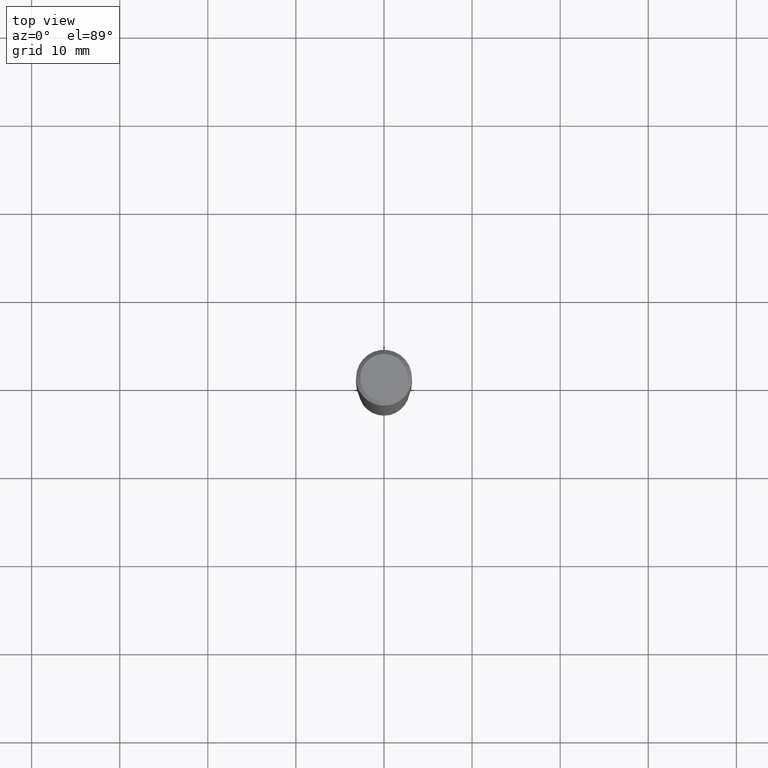
[diagram: clean part render]
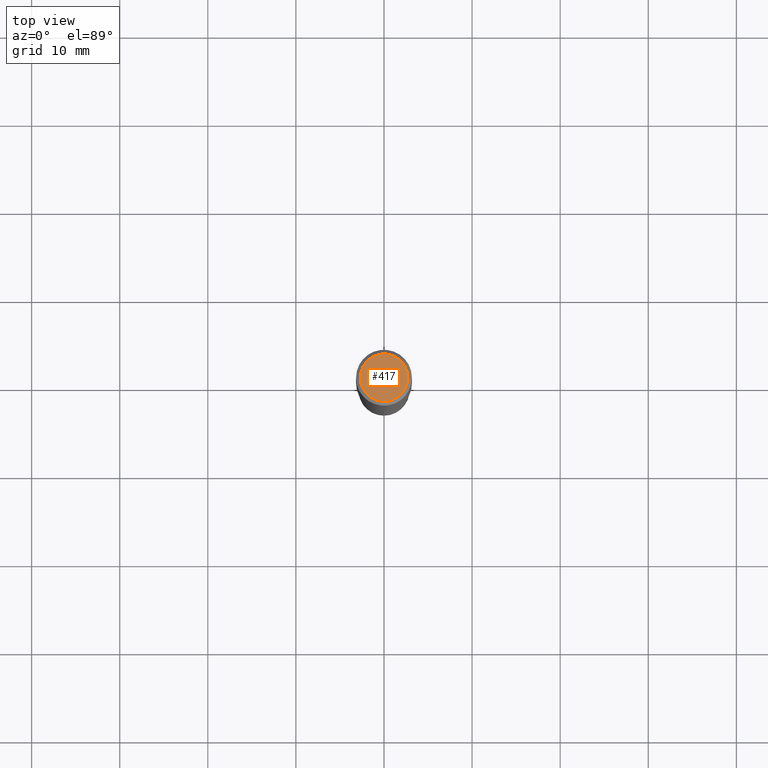
[diagram: same view with one face highlighted and labeled with its STEP entity id]
A machine part, top view. The second image highlights one B-rep face of the part: STEP entity #417.
In plain terms, the highlighted planar face has unit normal (0, -0, -1).
Its self-contained STEP definition (entity closure, byte-faithful):
#1 = EDGE_CURVE ( 'NONE', #425, #281, #75, .T. ) ;
#28 = EDGE_CURVE ( 'NONE', #281, #425, #61, .T. ) ;
#45 = ORIENTED_EDGE ( 'NONE', *, *, #28, .T. ) ;
#61 = CIRCLE ( 'NONE', #338, 0.1062499999999999972 ) ;
#65 = DIRECTION ( 'NONE',  ( -2.445468806185136597E-29, 3.491481338843145583E-15, 1.000000000000000000 ) ) ;
#72 = CARTESIAN_POINT ( 'NONE',  ( -0.1062499999999999972, 7.746724220558198188E-16, 6.505936120465015526E-18 ) ) ;
#75 = CIRCLE ( 'NONE', #272, 0.1062499999999999972 ) ;
#102 = CARTESIAN_POINT ( 'NONE',  ( -1.591006383764330940E-46, 2.271535455632768948E-32, 6.505936120470318766E-18 ) ) ;
#137 = DIRECTION ( 'NONE',  ( -2.445468806185136597E-29, 3.491481338843145583E-15, 1.000000000000000000 ) ) ;
#205 = ORIENTED_EDGE ( 'NONE', *, *, #1, .T. ) ;
#210 = DIRECTION ( 'NONE',  ( 1.000000000000000000, -6.982962677686266711E-15, 4.875930095424100059E-29 ) ) ;
#220 = AXIS2_PLACEMENT_3D ( 'NONE', #250, #254, #245 ) ;
#245 = DIRECTION ( 'NONE',  ( -1.000000000000000000, 6.982962677686265922E-15, -4.876176775795935793E-29 ) ) ;
#246 = CARTESIAN_POINT ( 'NONE',  ( -1.591006383764330940E-46, 2.271535455632768948E-32, 6.505936120470318766E-18 ) ) ;
#250 = CARTESIAN_POINT ( 'NONE',  ( -7.955031918821654702E-47, 1.135767727816384474E-32, 3.252968060235159383E-18 ) ) ;
#254 = DIRECTION ( 'NONE',  ( 2.438088387897960049E-29, -3.491481338843145188E-15, -1.000000000000000000 ) ) ;
#272 = AXIS2_PLACEMENT_3D ( 'NONE', #102, #137, #360 ) ;
#281 = VERTEX_POINT ( 'NONE', #468 ) ;
#325 = PLANE ( 'NONE',  #220 ) ;
#338 = AXIS2_PLACEMENT_3D ( 'NONE', #246, #65, #210 ) ;
#360 = DIRECTION ( 'NONE',  ( 1.000000000000000000, -6.982962677686266711E-15, 4.875930095424100059E-29 ) ) ;
#389 = FACE_OUTER_BOUND ( 'NONE', #432, .T. ) ;
#417 = ADVANCED_FACE ( 'NONE', ( #389 ), #325, .F. ) ;
#425 = VERTEX_POINT ( 'NONE', #72 ) ;
#432 = EDGE_LOOP ( 'NONE', ( #205, #45 ) ) ;
#468 = CARTESIAN_POINT ( 'NONE',  ( 0.1062499999999999972, -8.259777185439879685E-16, 6.505936120475800733E-18 ) ) ;